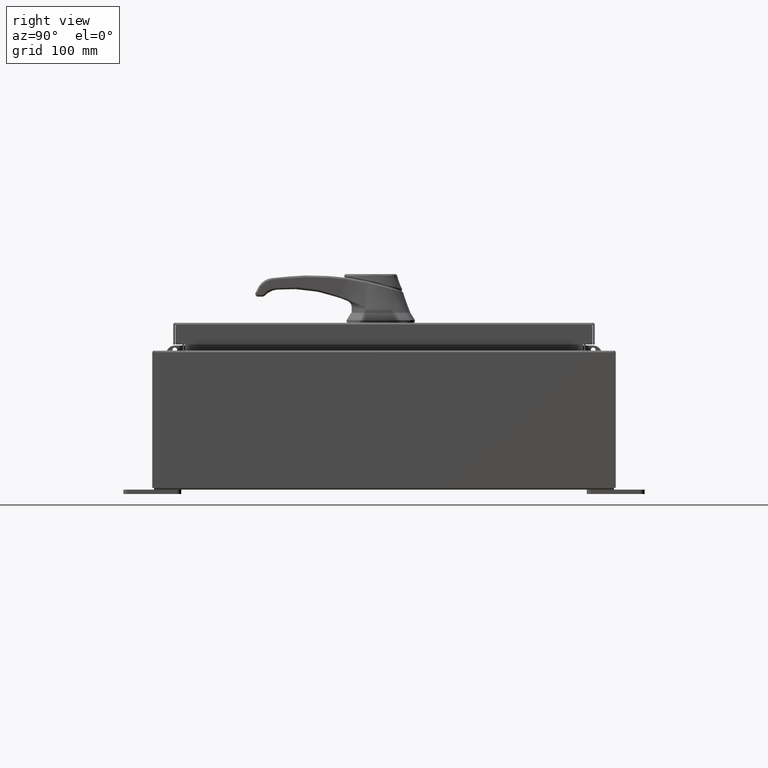
[diagram: clean part render]
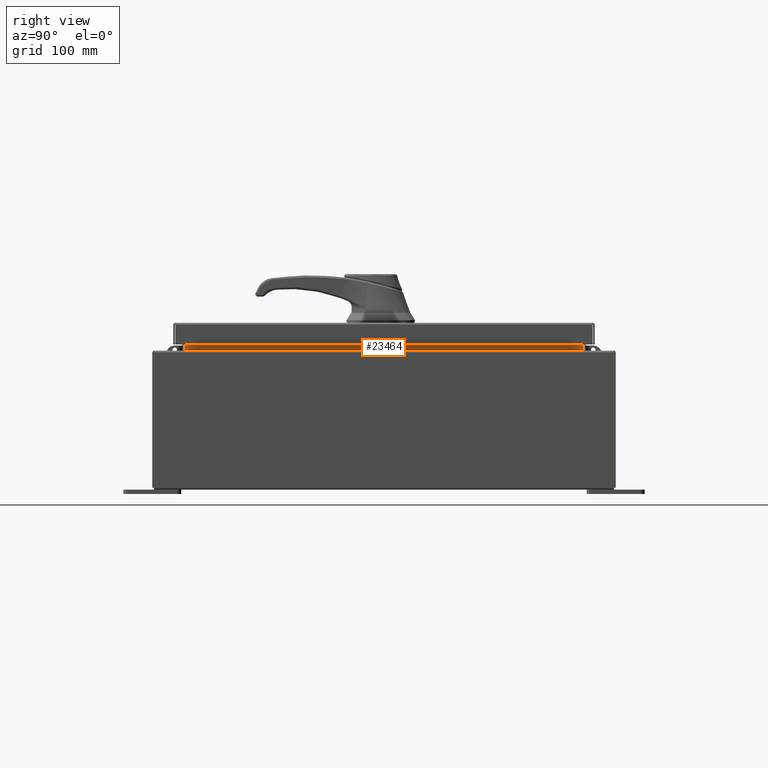
[diagram: same view with one face highlighted and labeled with its STEP entity id]
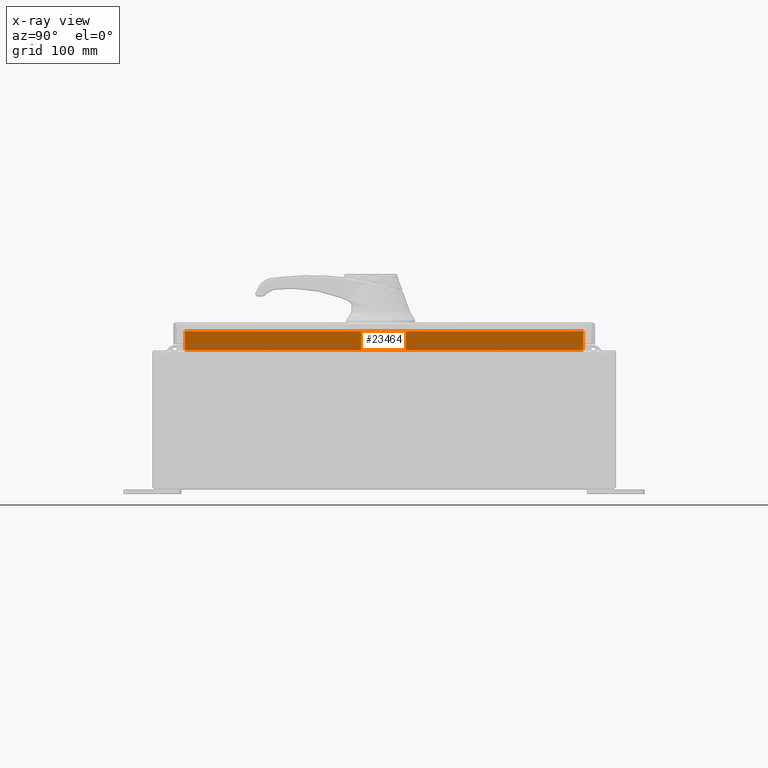
[diagram: x-ray of the same camera — body ghosted, the highlighted face saturated]
A machine part, right view. The second image highlights one B-rep face of the part: STEP entity #23464.
The next image is the same camera in x-ray: the body ghosted, the highlighted face saturated — about 0% of this face is hidden behind the body in this view.
In plain terms, the highlighted planar face has unit normal (1, 0, -0).
Its self-contained STEP definition (entity closure, byte-faithful):
#1578 = CARTESIAN_POINT ( 'NONE',  ( 8.699700000000024900, -8.593750000000003600, 6.850600000000008000 ) ) ;
#1729 = EDGE_CURVE ( 'NONE', #18606, #97209, #78376, .T. ) ;
#3859 = VERTEX_POINT ( 'NONE', #38127 ) ;
#4171 = VERTEX_POINT ( 'NONE', #54875 ) ;
#4226 = EDGE_LOOP ( 'NONE', ( #68148, #79119, #27415, #100223 ) ) ;
#4745 = DIRECTION ( 'NONE',  ( 2.543102132283823400E-016, -1.000000000000000000, 1.271551066141911700E-016 ) ) ;
#7380 = DIRECTION ( 'NONE',  ( -2.361913319930196000E-015, -0.0000000000000000000, -1.000000000000000000 ) ) ;
#16724 = CARTESIAN_POINT ( 'NONE',  ( 8.699700000000007100, 1.106211281011479900E-015, -2.054793730939674100E-014 ) ) ;
#18606 = VERTEX_POINT ( 'NONE', #88165 ) ;
#23464 = ADVANCED_FACE ( 'NONE', ( #79878 ), #33934, .T. ) ;
#27415 = ORIENTED_EDGE ( 'NONE', *, *, #33860, .F. ) ;
#27731 = LINE ( 'NONE', #81583, #47672 ) ;
#33150 = CARTESIAN_POINT ( 'NONE',  ( 8.699700000000019500, 8.593749999999994700, 5.925300000000008000 ) ) ;
#33860 = EDGE_CURVE ( 'NONE', #4171, #18606, #83885, .T. ) ;
#33934 = PLANE ( 'NONE',  #94465 ) ;
#34884 = EDGE_CURVE ( 'NONE', #3859, #4171, #27731, .T. ) ;
#37794 = DIRECTION ( 'NONE',  ( 0.0000000000000000000, 1.000000000000000000, 0.0000000000000000000 ) ) ;
#38127 = CARTESIAN_POINT ( 'NONE',  ( 8.699700000000019500, 8.593749999999994700, 5.938300000000008800 ) ) ;
#42474 = DIRECTION ( 'NONE',  ( -2.361913319930196000E-015, 0.0000000000000000000, -1.000000000000000000 ) ) ;
#44497 = EDGE_CURVE ( 'NONE', #97209, #3859, #100188, .T. ) ;
#47672 = VECTOR ( 'NONE', #4745, 39.37007874015748100 ) ;
#52085 = VECTOR ( 'NONE', #7380, 39.37007874015748100 ) ;
#54875 = CARTESIAN_POINT ( 'NONE',  ( 8.699700000000019500, -8.593750000000005300, 5.938300000000008800 ) ) ;
#55647 = VECTOR ( 'NONE', #37794, 39.37007874015748100 ) ;
#58491 = VECTOR ( 'NONE', #78396, 39.37007874015748100 ) ;
#68148 = ORIENTED_EDGE ( 'NONE', *, *, #44497, .F. ) ;
#78376 = LINE ( 'NONE', #99411, #55647 ) ;
#78396 = DIRECTION ( 'NONE',  ( 2.361913319930198800E-015, -0.0000000000000000000, 1.000000000000000000 ) ) ;
#79119 = ORIENTED_EDGE ( 'NONE', *, *, #1729, .F. ) ;
#79878 = FACE_OUTER_BOUND ( 'NONE', #4226, .T. ) ;
#81583 = CARTESIAN_POINT ( 'NONE',  ( 8.699700000000019500, 8.593749999999994700, 5.938300000000007900 ) ) ;
#83885 = LINE ( 'NONE', #1578, #58491 ) ;
#88165 = CARTESIAN_POINT ( 'NONE',  ( 8.699700000000024900, -8.593750000000003600, 6.762900000000008100 ) ) ;
#93583 = DIRECTION ( 'NONE',  ( 1.000000000000000000, 1.271551066141911700E-016, -2.361913319930196000E-015 ) ) ;
#93904 = CARTESIAN_POINT ( 'NONE',  ( 8.699700000000024900, 8.593749999999994700, 6.762900000000008100 ) ) ;
#94465 = AXIS2_PLACEMENT_3D ( 'NONE', #16724, #93583, #42474 ) ;
#97209 = VERTEX_POINT ( 'NONE', #93904 ) ;
#99411 = CARTESIAN_POINT ( 'NONE',  ( 8.699700000000024900, -8.593750000000003600, 6.762900000000008100 ) ) ;
#100188 = LINE ( 'NONE', #33150, #52085 ) ;
#100223 = ORIENTED_EDGE ( 'NONE', *, *, #34884, .F. ) ;